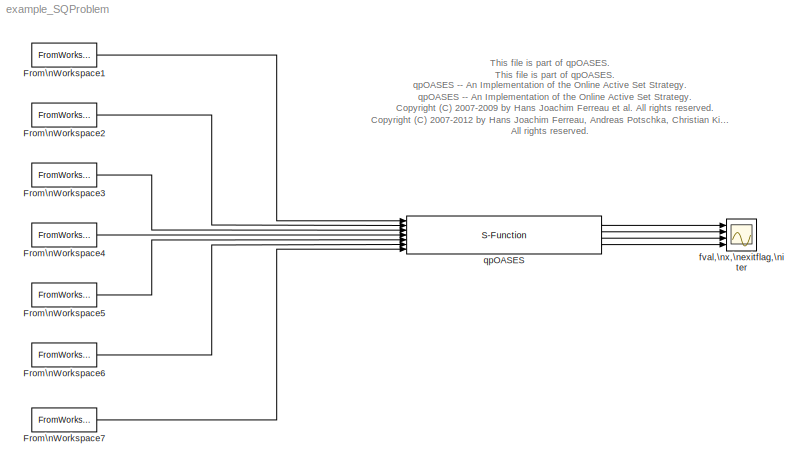
MODEL example_SQProblem
KIND model
BLOCK [FromWorkspace] From\nWorkspace1
  OutputAfterFinalValue = Holding final value
  SID = 1
  SampleTime = 0.1
  VariableName = H
  ZeroCross = on
BLOCK [FromWorkspace] From\nWorkspace2
  OutputAfterFinalValue = Holding final value
  SID = 2
  SampleTime = 0.1
  VariableName = g
  ZeroCross = on
BLOCK [FromWorkspace] From\nWorkspace3
  OutputAfterFinalValue = Holding final value
  SID = 3
  SampleTime = 0.1
  VariableName = A
  ZeroCross = on
BLOCK [FromWorkspace] From\nWorkspace4
  OutputAfterFinalValue = Holding final value
  SID = 4
  SampleTime = 0.1
  VariableName = lb
  ZeroCross = on
BLOCK [FromWorkspace] From\nWorkspace5
  OutputAfterFinalValue = Holding final value
  SID = 5
  SampleTime = 0.1
  VariableName = ub
  ZeroCross = on
BLOCK [FromWorkspace] From\nWorkspace6
  OutputAfterFinalValue = Holding final value
  SID = 6
  SampleTime = 0.1
  VariableName = lbA
  ZeroCross = on
BLOCK [FromWorkspace] From\nWorkspace7
  OutputAfterFinalValue = Holding final value
  SID = 7
  SampleTime = 0.1
  VariableName = ubA
  ZeroCross = on
BLOCK [Scope] fval,\nx,\nexitflag,\niter
  DataFormat = StructureWithTime
  Floating = off
  NumInputPorts = 4
  Ports = [4]
  SID = 8
  SampleTime = 0
  SaveName = ScopeData1
  YMax = 5~5~5~5
  YMin = -5~-5~-5~-5
BLOCK [S-Function] qpOASES
  EnableBusSupport = off
  FunctionName = qpOASES_SQProblem
  Ports = [7, 4]
  SID = 9
ANNOTATION (root): This file is part of qpOASES.\n\nqpOASES -- An Implementation of the Online Active Set Strategy.\nCopyright (C) 2007-2009 by Hans Joachim Ferreau et al. All rights reserved.
ANNOTATION (root): This file is part of qpOASES.\n\nqpOASES -- An Implementation of the Online Active Set Strategy.\nCopyright (C) 2007-2012 by Hans Joachim Ferreau, Andreas Potschka, Christian Kirches et al.\nAll rights reserved.
LINE From\nWorkspace1:1 -> qpOASES:1
LINE From\nWorkspace2:1 -> qpOASES:2
LINE From\nWorkspace3:1 -> qpOASES:3
LINE From\nWorkspace4:1 -> qpOASES:4
LINE From\nWorkspace5:1 -> qpOASES:5
LINE From\nWorkspace6:1 -> qpOASES:6
LINE From\nWorkspace7:1 -> qpOASES:7
LINE qpOASES:1 -> fval,\nx,\nexitflag,\niter:1
LINE qpOASES:2 -> fval,\nx,\nexitflag,\niter:2
LINE qpOASES:3 -> fval,\nx,\nexitflag,\niter:3
LINE qpOASES:4 -> fval,\nx,\nexitflag,\niter:4
